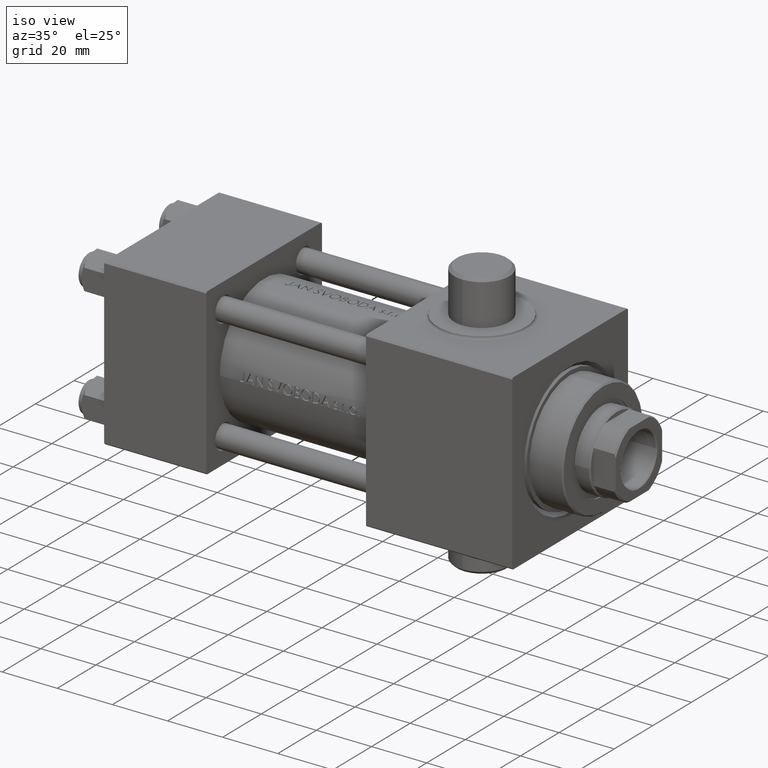
[diagram: clean part render]
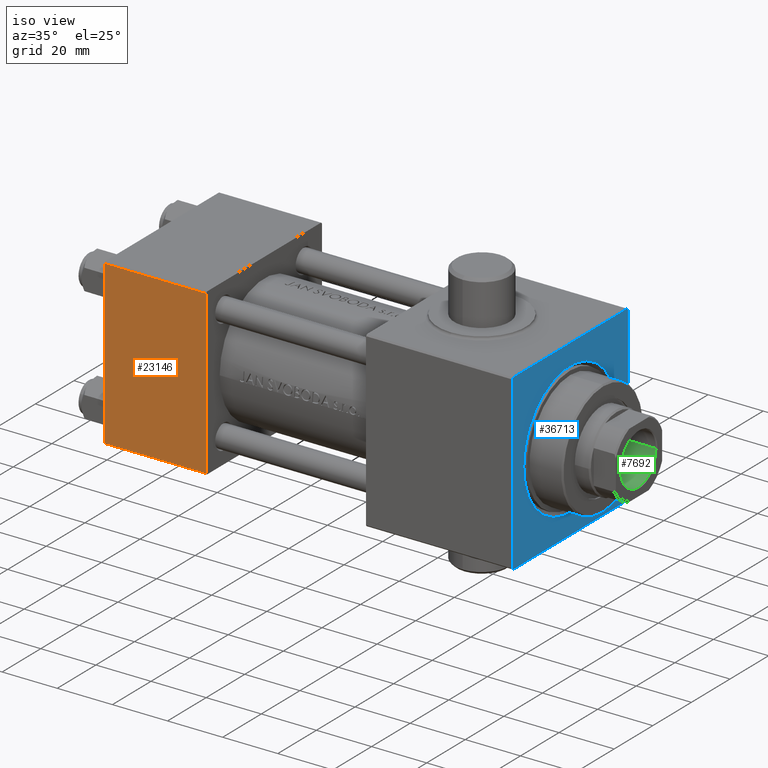
[diagram: same view with three faces highlighted in distinct colors, each labeled with its STEP entity id]
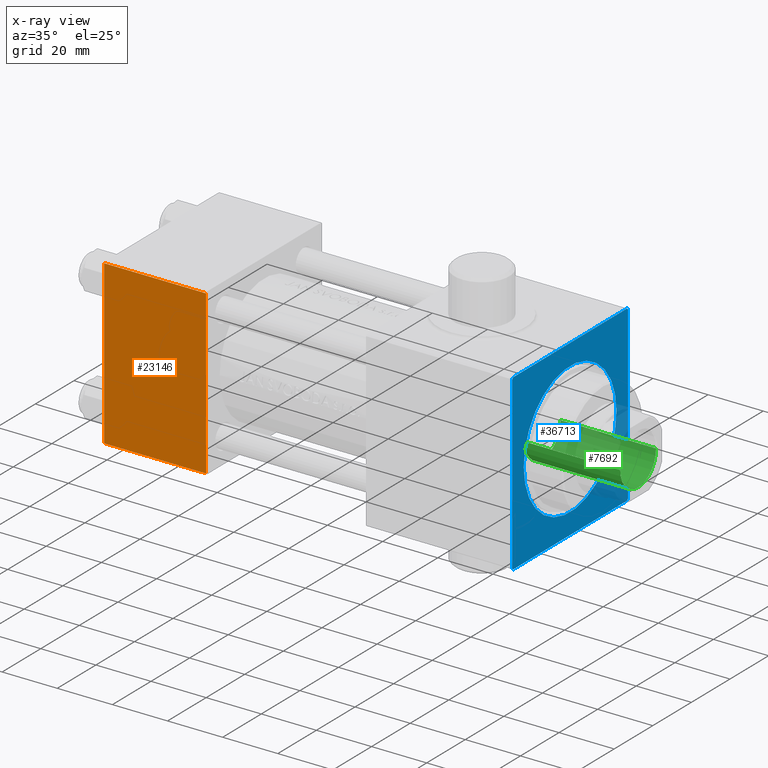
[diagram: x-ray of the same camera — body ghosted, the three highlighted faces saturated]
A machine part, iso view with three faces highlighted in distinct colors.
The next image is the same camera in x-ray (body ghosted, the three faces saturated) — at least one of them is partly hidden behind the body in this view.
Their STEP definitions:

[orange] entity #23146 — the highlighted planar face has unit normal (0, -1, -0).
#1143 = EDGE_CURVE ( 'NONE', #1950, #5221, #5369, .T. ) ;
#1950 = VERTEX_POINT ( 'NONE', #36554 ) ;
#5221 = VERTEX_POINT ( 'NONE', #15901 ) ;
#5369 = LINE ( 'NONE', #23119, #29033 ) ;
#5522 = ORIENTED_EDGE ( 'NONE', *, *, #1143, .F. ) ;
#7168 = CARTESIAN_POINT ( 'NONE',  ( 37.00000000000000000, 29.99999999999999289, -30.00000000000000000 ) ) ;
#7853 = CARTESIAN_POINT ( 'NONE',  ( 37.00000000000000000, 29.99999999999999289, -30.00000000000000000 ) ) ;
#7871 = DIRECTION ( 'NONE',  ( -1.000000000000000000, 0.000000000000000000, 0.000000000000000000 ) ) ;
#10676 = ORIENTED_EDGE ( 'NONE', *, *, #31336, .T. ) ;
#11162 = CARTESIAN_POINT ( 'NONE',  ( 37.00000000000000000, 29.49999999999997868, -30.00000000000000000 ) ) ;
#11535 = EDGE_LOOP ( 'NONE', ( #5522, #10676, #41534, #33667 ) ) ;
#11840 = CARTESIAN_POINT ( 'NONE',  ( 0.000000000000000000, -29.50000000000001066, -30.00000000000000711 ) ) ;
#12062 = LINE ( 'NONE', #11840, #38706 ) ;
#12459 = AXIS2_PLACEMENT_3D ( 'NONE', #7853, #36406, #40382 ) ;
#14101 = VECTOR ( 'NONE', #21183, 1000.000000000000000 ) ;
#15901 = CARTESIAN_POINT ( 'NONE',  ( 0.000000000000000000, -29.50000000000000000, -30.00000000000000711 ) ) ;
#21183 = DIRECTION ( 'NONE',  ( 0.000000000000000000, -1.000000000000000000, -1.156482317317871725E-16 ) ) ;
#23119 = CARTESIAN_POINT ( 'NONE',  ( 0.000000000000000000, 29.99999999999999289, -30.00000000000000000 ) ) ;
#23146 = ADVANCED_FACE ( 'NONE', ( #29827 ), #43673, .T. ) ;
#25145 = CARTESIAN_POINT ( 'NONE',  ( 37.00000000000000000, 29.49999999999997868, -30.00000000000000000 ) ) ;
#29033 = VECTOR ( 'NONE', #30142, 1000.000000000000000 ) ;
#29827 = FACE_OUTER_BOUND ( 'NONE', #11535, .T. ) ;
#30142 = DIRECTION ( 'NONE',  ( 0.000000000000000000, -1.000000000000000000, -1.156482317317871725E-16 ) ) ;
#30549 = EDGE_CURVE ( 'NONE', #36356, #5221, #12062, .T. ) ;
#31336 = EDGE_CURVE ( 'NONE', #1950, #36226, #32402, .T. ) ;
#31960 = LINE ( 'NONE', #7168, #14101 ) ;
#32402 = LINE ( 'NONE', #25145, #37257 ) ;
#32632 = DIRECTION ( 'NONE',  ( 1.000000000000000000, 0.000000000000000000, 0.000000000000000000 ) ) ;
#32879 = EDGE_CURVE ( 'NONE', #36226, #36356, #31960, .T. ) ;
#33667 = ORIENTED_EDGE ( 'NONE', *, *, #30549, .T. ) ;
#36226 = VERTEX_POINT ( 'NONE', #11162 ) ;
#36320 = CARTESIAN_POINT ( 'NONE',  ( 37.00000000000000000, -29.50000000000000000, -30.00000000000000711 ) ) ;
#36356 = VERTEX_POINT ( 'NONE', #36320 ) ;
#36406 = DIRECTION ( 'NONE',  ( 0.000000000000000000, 1.156482317317871725E-16, -1.000000000000000000 ) ) ;
#36554 = CARTESIAN_POINT ( 'NONE',  ( 0.000000000000000000, 29.49999999999997868, -30.00000000000000000 ) ) ;
#37257 = VECTOR ( 'NONE', #32632, 1000.000000000000000 ) ;
#38706 = VECTOR ( 'NONE', #7871, 1000.000000000000000 ) ;
#40382 = DIRECTION ( 'NONE',  ( 0.000000000000000000, 1.000000000000000000, 1.156482317317871725E-16 ) ) ;
#41534 = ORIENTED_EDGE ( 'NONE', *, *, #32879, .T. ) ;
#43673 = PLANE ( 'NONE',  #12459 ) ;

[blue] entity #36713 — the highlighted planar face has unit normal (-1, 0, -0).
#243 = CARTESIAN_POINT ( 'NONE',  ( 148.0000000000000000, 30.99999999999997158, -30.00000000000000711 ) ) ;
#661 = CARTESIAN_POINT ( 'NONE',  ( 148.0000000000000000, -31.50000000000000711, 29.49999999999998934 ) ) ;
#953 = CARTESIAN_POINT ( 'NONE',  ( 148.0000000000000000, 31.49999999999998579, -30.00000000000000711 ) ) ;
#1225 = ORIENTED_EDGE ( 'NONE', *, *, #21670, .T. ) ;
#1382 = ORIENTED_EDGE ( 'NONE', *, *, #28713, .T. ) ;
#1743 = VERTEX_POINT ( 'NONE', #29792 ) ;
#2480 = CARTESIAN_POINT ( 'NONE',  ( 148.0000000000000000, -31.00000000000000711, -30.00000000000002132 ) ) ;
#3385 = LINE ( 'NONE', #31898, #24309 ) ;
#3822 = LINE ( 'NONE', #11506, #13102 ) ;
#4010 = VERTEX_POINT ( 'NONE', #243 ) ;
#4213 = LINE ( 'NONE', #32727, #40111 ) ;
#4485 = EDGE_CURVE ( 'NONE', #20213, #43899, #20047, .T. ) ;
#4608 = CARTESIAN_POINT ( 'NONE',  ( 148.0000000000000000, 31.49999999999998579, -29.49999999999999289 ) ) ;
#5203 = LINE ( 'NONE', #19442, #9021 ) ;
#5705 = AXIS2_PLACEMENT_3D ( 'NONE', #46170, #35843, #24130 ) ;
#7541 = DIRECTION ( 'NONE',  ( 0.000000000000000000, -1.000000000000000000, -5.507058653894625853E-17 ) ) ;
#8200 = CIRCLE ( 'NONE', #11937, 23.99999999999998224 ) ;
#9021 = VECTOR ( 'NONE', #44518, 1000.000000000000114 ) ;
#10045 = ORIENTED_EDGE ( 'NONE', *, *, #23033, .T. ) ;
#11110 = DIRECTION ( 'NONE',  ( -1.000000000000000000, 0.000000000000000000, -0.000000000000000000 ) ) ;
#11506 = CARTESIAN_POINT ( 'NONE',  ( 148.0000000000000000, 31.49999999999998579, 29.99999999999999289 ) ) ;
#11845 = DIRECTION ( 'NONE',  ( -1.000000000000000000, 0.000000000000000000, -0.000000000000000000 ) ) ;
#11937 = AXIS2_PLACEMENT_3D ( 'NONE', #38617, #11845, #22803 ) ;
#13102 = VECTOR ( 'NONE', #7541, 1000.000000000000000 ) ;
#14849 = FACE_OUTER_BOUND ( 'NONE', #29307, .T. ) ;
#15793 = VERTEX_POINT ( 'NONE', #34946 ) ;
#17109 = VECTOR ( 'NONE', #33632, 1000.000000000000114 ) ;
#18615 = VERTEX_POINT ( 'NONE', #2480 ) ;
#18712 = AXIS2_PLACEMENT_3D ( 'NONE', #25368, #11110, #24269 ) ;
#18992 = EDGE_CURVE ( 'NONE', #1743, #25467, #3822, .T. ) ;
#19115 = LINE ( 'NONE', #661, #17109 ) ;
#19442 = CARTESIAN_POINT ( 'NONE',  ( 148.0000000000000000, -31.00000000000000711, -30.00000000000002132 ) ) ;
#19483 = CARTESIAN_POINT ( 'NONE',  ( 148.0000000000000000, -31.50000000000000711, -29.50000000000002132 ) ) ;
#19583 = CARTESIAN_POINT ( 'NONE',  ( 148.0000000000000000, -31.50000000000000711, 29.49999999999998934 ) ) ;
#20047 = LINE ( 'NONE', #20504, #44175 ) ;
#20100 = VECTOR ( 'NONE', #35838, 1000.000000000000000 ) ;
#20213 = VERTEX_POINT ( 'NONE', #34200 ) ;
#20259 = ORIENTED_EDGE ( 'NONE', *, *, #24634, .T. ) ;
#20504 = CARTESIAN_POINT ( 'NONE',  ( 148.0000000000000000, 31.49999999999998579, 29.99999999999999289 ) ) ;
#20555 = EDGE_CURVE ( 'NONE', #4010, #43899, #3385, .T. ) ;
#21229 = CARTESIAN_POINT ( 'NONE',  ( 148.0000000000000000, 2.939152317953645922E-15, 23.99999999999998224 ) ) ;
#21670 = EDGE_CURVE ( 'NONE', #31709, #15793, #39344, .T. ) ;
#21848 = PLANE ( 'NONE',  #18712 ) ;
#22452 = ORIENTED_EDGE ( 'NONE', *, *, #4485, .F. ) ;
#22803 = DIRECTION ( 'NONE',  ( 0.000000000000000000, 0.000000000000000000, 1.000000000000000000 ) ) ;
#23033 = EDGE_CURVE ( 'NONE', #20213, #1743, #4213, .T. ) ;
#24060 = ORIENTED_EDGE ( 'NONE', *, *, #34736, .T. ) ;
#24130 = DIRECTION ( 'NONE',  ( 0.000000000000000000, 0.000000000000000000, 1.000000000000000000 ) ) ;
#24269 = DIRECTION ( 'NONE',  ( -0.000000000000000000, 0.000000000000000000, 1.000000000000000000 ) ) ;
#24309 = VECTOR ( 'NONE', #28390, 1000.000000000000114 ) ;
#24634 = EDGE_CURVE ( 'NONE', #43505, #39439, #42733, .T. ) ;
#25368 = CARTESIAN_POINT ( 'NONE',  ( 148.0000000000000000, 0.000000000000000000, 0.000000000000000000 ) ) ;
#25467 = VERTEX_POINT ( 'NONE', #39904 ) ;
#25827 = FACE_BOUND ( 'NONE', #45881, .T. ) ;
#26387 = DIRECTION ( 'NONE',  ( 0.000000000000000000, -0.7071067811865376918, 0.7071067811865573427 ) ) ;
#28390 = DIRECTION ( 'NONE',  ( -0.000000000000000000, 0.7071067811865474617, 0.7071067811865474617 ) ) ;
#28713 = EDGE_CURVE ( 'NONE', #25467, #43505, #19115, .T. ) ;
#29307 = EDGE_LOOP ( 'NONE', ( #20259, #42871, #44663, #30849, #22452, #10045, #42192, #1382 ) ) ;
#29792 = CARTESIAN_POINT ( 'NONE',  ( 148.0000000000000000, 31.00000000000001421, 29.99999999999999289 ) ) ;
#30849 = ORIENTED_EDGE ( 'NONE', *, *, #20555, .T. ) ;
#31709 = VERTEX_POINT ( 'NONE', #21229 ) ;
#31898 = CARTESIAN_POINT ( 'NONE',  ( 148.0000000000000000, 31.49999999999998579, -29.49999999999999289 ) ) ;
#31933 = CARTESIAN_POINT ( 'NONE',  ( 148.0000000000000000, -31.50000000000000711, 29.99999999999998934 ) ) ;
#32531 = LINE ( 'NONE', #953, #20100 ) ;
#32727 = CARTESIAN_POINT ( 'NONE',  ( 148.0000000000000000, 31.00000000000001421, 29.99999999999999289 ) ) ;
#33619 = EDGE_CURVE ( 'NONE', #4010, #18615, #32531, .T. ) ;
#33632 = DIRECTION ( 'NONE',  ( -0.000000000000000000, -0.7071067811865474617, -0.7071067811865474617 ) ) ;
#34200 = CARTESIAN_POINT ( 'NONE',  ( 148.0000000000000000, 31.49999999999998579, 29.50000000000000711 ) ) ;
#34343 = DIRECTION ( 'NONE',  ( 0.000000000000000000, 0.000000000000000000, -1.000000000000000000 ) ) ;
#34736 = EDGE_CURVE ( 'NONE', #15793, #31709, #8200, .T. ) ;
#34946 = CARTESIAN_POINT ( 'NONE',  ( 148.0000000000000000, 0.000000000000000000, -23.99999999999998224 ) ) ;
#35838 = DIRECTION ( 'NONE',  ( 0.000000000000000000, -1.000000000000000000, -2.202823461557850341E-16 ) ) ;
#35843 = DIRECTION ( 'NONE',  ( -1.000000000000000000, 0.000000000000000000, -0.000000000000000000 ) ) ;
#36713 = ADVANCED_FACE ( 'NONE', ( #25827, #14849 ), #21848, .F. ) ;
#37381 = EDGE_CURVE ( 'NONE', #39439, #18615, #5203, .T. ) ;
#38617 = CARTESIAN_POINT ( 'NONE',  ( 148.0000000000000000, 0.000000000000000000, 0.000000000000000000 ) ) ;
#39344 = CIRCLE ( 'NONE', #5705, 23.99999999999998224 ) ;
#39439 = VERTEX_POINT ( 'NONE', #19483 ) ;
#39904 = CARTESIAN_POINT ( 'NONE',  ( 148.0000000000000000, -31.00000000000000711, 29.99999999999998934 ) ) ;
#40111 = VECTOR ( 'NONE', #26387, 1000.000000000000114 ) ;
#42192 = ORIENTED_EDGE ( 'NONE', *, *, #18992, .T. ) ;
#42733 = LINE ( 'NONE', #31933, #46150 ) ;
#42871 = ORIENTED_EDGE ( 'NONE', *, *, #37381, .T. ) ;
#43505 = VERTEX_POINT ( 'NONE', #19583 ) ;
#43899 = VERTEX_POINT ( 'NONE', #4608 ) ;
#44175 = VECTOR ( 'NONE', #34343, 1000.000000000000000 ) ;
#44518 = DIRECTION ( 'NONE',  ( 0.000000000000000000, 0.7071067811865500152, -0.7071067811865451302 ) ) ;
#44663 = ORIENTED_EDGE ( 'NONE', *, *, #33619, .F. ) ;
#45881 = EDGE_LOOP ( 'NONE', ( #24060, #1225 ) ) ;
#46150 = VECTOR ( 'NONE', #46257, 1000.000000000000000 ) ;
#46170 = CARTESIAN_POINT ( 'NONE',  ( 148.0000000000000000, 0.000000000000000000, 0.000000000000000000 ) ) ;
#46257 = DIRECTION ( 'NONE',  ( 0.000000000000000000, 0.000000000000000000, -1.000000000000000000 ) ) ;

[green] entity #7692 — the highlighted cylindrical surface (edge-blend (fillet) strip) has radius 9.25 mm, axis along (1, 0, 0).
#3031 = DIRECTION ( 'NONE',  ( 1.000000000000000000, 0.000000000000000000, 0.000000000000000000 ) ) ;
#5758 = AXIS2_PLACEMENT_3D ( 'NONE', #23826, #44941, #27101 ) ;
#6192 = DIRECTION ( 'NONE',  ( 1.000000000000000000, 0.000000000000000000, 0.000000000000000000 ) ) ;
#7622 = CYLINDRICAL_SURFACE ( 'NONE', #36045, 9.249999999999994671 ) ;
#7692 = ADVANCED_FACE ( 'NONE', ( #25388 ), #7622, .F. ) ;
#8861 = LINE ( 'NONE', #31059, #37388 ) ;
#9882 = CARTESIAN_POINT ( 'NONE',  ( 9.249999999999994671, 0.000000000000000000, 136.0000000000000000 ) ) ;
#11738 = CARTESIAN_POINT ( 'NONE',  ( -9.249999999999992895, 1.132798289211300712E-15, 101.0000000000000000 ) ) ;
#12983 = CARTESIAN_POINT ( 'NONE',  ( -9.249999999999994671, 1.132798289211300909E-15, 135.7000000000000455 ) ) ;
#13757 = DIRECTION ( 'NONE',  ( -0.000000000000000000, -0.000000000000000000, 1.000000000000000000 ) ) ;
#13836 = DIRECTION ( 'NONE',  ( -0.000000000000000000, -0.000000000000000000, 1.000000000000000000 ) ) ;
#14196 = EDGE_LOOP ( 'NONE', ( #32088, #40002, #18453, #19243 ) ) ;
#18453 = ORIENTED_EDGE ( 'NONE', *, *, #33560, .T. ) ;
#19243 = ORIENTED_EDGE ( 'NONE', *, *, #45137, .T. ) ;
#19444 = CARTESIAN_POINT ( 'NONE',  ( 9.249999999999994671, 0.000000000000000000, 135.7000000000000455 ) ) ;
#20235 = VERTEX_POINT ( 'NONE', #19444 ) ;
#20845 = LINE ( 'NONE', #9882, #30553 ) ;
#22119 = VERTEX_POINT ( 'NONE', #12983 ) ;
#23663 = CIRCLE ( 'NONE', #5758, 9.249999999999994671 ) ;
#23826 = CARTESIAN_POINT ( 'NONE',  ( 0.000000000000000000, 0.000000000000000000, 135.7000000000000455 ) ) ;
#25388 = FACE_OUTER_BOUND ( 'NONE', #14196, .T. ) ;
#26085 = DIRECTION ( 'NONE',  ( -0.000000000000000000, -0.000000000000000000, 1.000000000000000000 ) ) ;
#27101 = DIRECTION ( 'NONE',  ( 1.000000000000000000, 0.000000000000000000, 0.000000000000000000 ) ) ;
#30553 = VECTOR ( 'NONE', #13836, 1000.000000000000000 ) ;
#31059 = CARTESIAN_POINT ( 'NONE',  ( -9.249999999999994671, 1.132798289211300909E-15, 136.0000000000000000 ) ) ;
#32088 = ORIENTED_EDGE ( 'NONE', *, *, #36019, .F. ) ;
#32824 = CARTESIAN_POINT ( 'NONE',  ( 9.249999999999992895, 0.000000000000000000, 101.0000000000000000 ) ) ;
#33293 = VERTEX_POINT ( 'NONE', #32824 ) ;
#33560 = EDGE_CURVE ( 'NONE', #33293, #20235, #20845, .T. ) ;
#33674 = AXIS2_PLACEMENT_3D ( 'NONE', #35076, #13757, #3031 ) ;
#35076 = CARTESIAN_POINT ( 'NONE',  ( 0.000000000000000000, 0.000000000000000000, 101.0000000000000000 ) ) ;
#36019 = EDGE_CURVE ( 'NONE', #36435, #22119, #8861, .T. ) ;
#36045 = AXIS2_PLACEMENT_3D ( 'NONE', #39696, #26085, #6192 ) ;
#36435 = VERTEX_POINT ( 'NONE', #11738 ) ;
#37388 = VECTOR ( 'NONE', #44681, 1000.000000000000000 ) ;
#37814 = EDGE_CURVE ( 'NONE', #33293, #36435, #41926, .T. ) ;
#39696 = CARTESIAN_POINT ( 'NONE',  ( 0.000000000000000000, 0.000000000000000000, 136.0000000000000000 ) ) ;
#40002 = ORIENTED_EDGE ( 'NONE', *, *, #37814, .F. ) ;
#41926 = CIRCLE ( 'NONE', #33674, 9.249999999999992895 ) ;
#44681 = DIRECTION ( 'NONE',  ( -0.000000000000000000, -0.000000000000000000, 1.000000000000000000 ) ) ;
#44941 = DIRECTION ( 'NONE',  ( 0.000000000000000000, 0.000000000000000000, 1.000000000000000000 ) ) ;
#45137 = EDGE_CURVE ( 'NONE', #20235, #22119, #23663, .T. ) ;